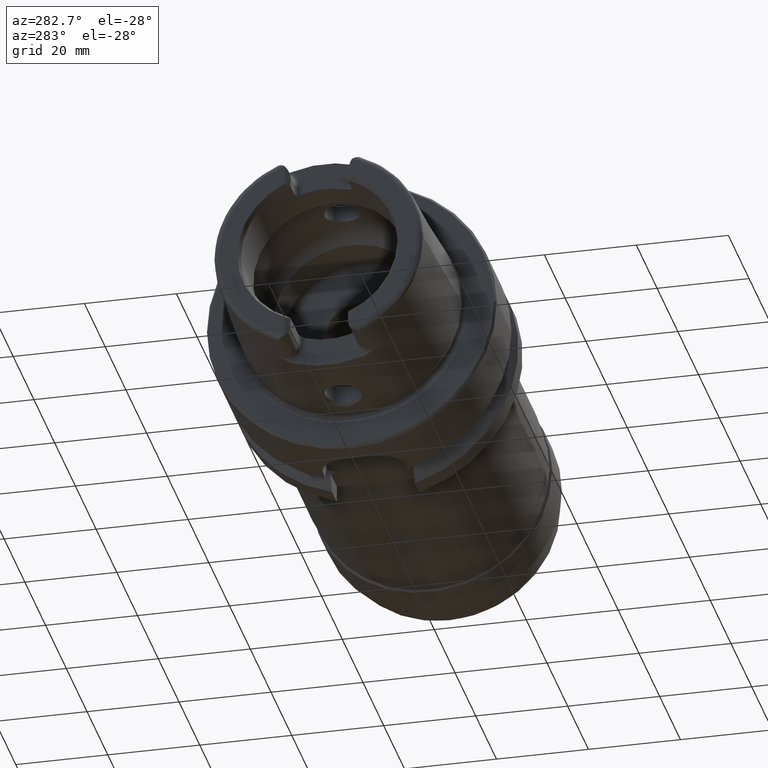
[diagram: clean part render]
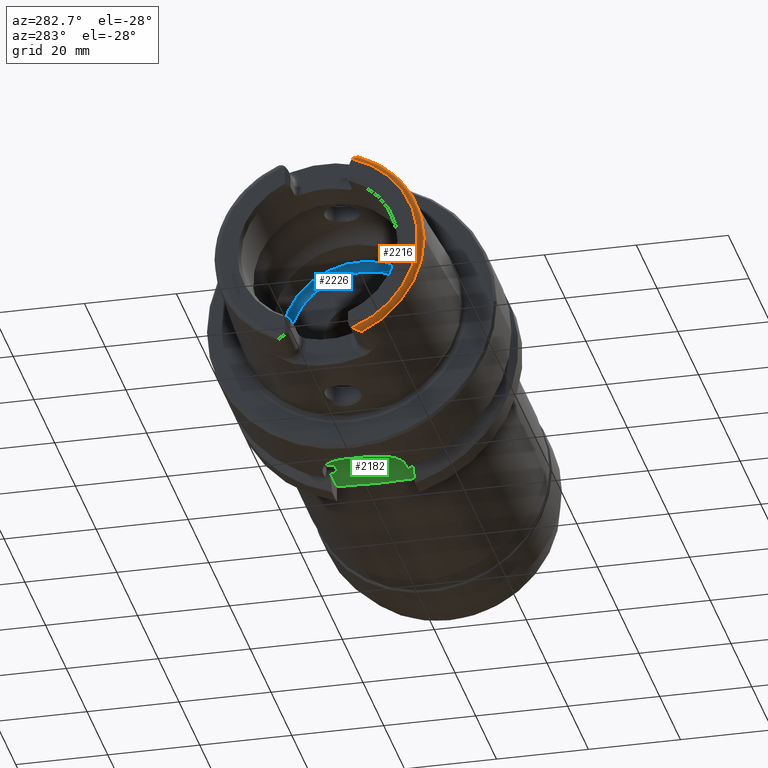
[diagram: same view with three faces highlighted in distinct colors, each labeled with its STEP entity id]
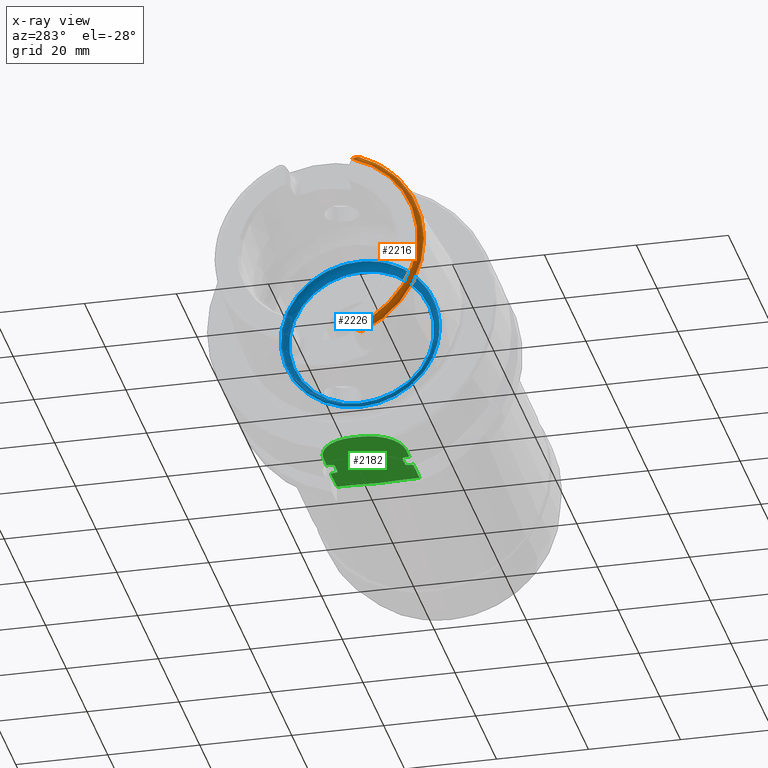
[diagram: x-ray of the same camera — body ghosted, the three highlighted faces saturated]
A machine part, auxiliary view with three faces highlighted in distinct colors.
The next image is the same camera in x-ray (body ghosted, the three faces saturated) — at least one of them is partly hidden behind the body in this view.
Their STEP definitions:

[orange] entity #2216 — the highlighted toroidal blend (fillet) surface has major radius 21.576 mm and minor (blend) radius 1.2 mm.
#44=B_SPLINE_CURVE_WITH_KNOTS('',3,(#3466,#3467,#3468,#3469,#3470,#3471,
#3472,#3473,#3474,#3475,#3476,#3477),.UNSPECIFIED.,.F.,.F.,(4,2,2,2,2,4),
(-0.440016298339346,-0.413819168091726,-0.38684223146412,-0.314176502280688,
-0.242048966230796,-0.191409762337977),.UNSPECIFIED.);
#99=B_SPLINE_CURVE_WITH_KNOTS('',3,(#4651,#4652,#4653,#4654,#4655,#4656,
#4657,#4658,#4659,#4660,#4661,#4662),.UNSPECIFIED.,.F.,.F.,(4,2,2,2,2,4),
(-0.196612183526961,-0.162100751777108,-0.0988537843219417,-0.0492481970353068,
-0.0201985054494333,0.),.UNSPECIFIED.);
#190=TOROIDAL_SURFACE('',#2486,21.5760400159857,1.2);
#294=FACE_OUTER_BOUND('',#426,.T.);
#426=EDGE_LOOP('',(#1936,#1937,#1938,#1939,#1940));
#732=CIRCLE('',#2345,21.5760400159857);
#741=CIRCLE('',#2369,22.7745368271334);
#745=CIRCLE('',#2373,22.7745368271334);
#884=VERTEX_POINT('',#3392);
#885=VERTEX_POINT('',#3394);
#901=VERTEX_POINT('',#3465);
#916=VERTEX_POINT('',#3666);
#917=VERTEX_POINT('',#3668);
#1128=EDGE_CURVE('',#885,#884,#732,.T.);
#1149=EDGE_CURVE('',#901,#885,#44,.T.);
#1169=EDGE_CURVE('',#916,#917,#741,.T.);
#1182=EDGE_CURVE('',#901,#916,#745,.T.);
#1354=EDGE_CURVE('',#884,#917,#99,.T.);
#1936=ORIENTED_EDGE('',*,*,#1149,.T.);
#1937=ORIENTED_EDGE('',*,*,#1128,.T.);
#1938=ORIENTED_EDGE('',*,*,#1354,.T.);
#1939=ORIENTED_EDGE('',*,*,#1169,.F.);
#1940=ORIENTED_EDGE('',*,*,#1182,.F.);
#2216=ADVANCED_FACE('',(#294),#190,.T.);
#2345=AXIS2_PLACEMENT_3D('',#3395,#2722,#2723);
#2369=AXIS2_PLACEMENT_3D('',#3669,#2788,#2789);
#2373=AXIS2_PLACEMENT_3D('',#3792,#2796,#2797);
#2486=AXIS2_PLACEMENT_3D('',#4650,#3087,#3088);
#2722=DIRECTION('center_axis',(1.,0.,0.));
#2723=DIRECTION('ref_axis',(0.,0.,-1.));
#2788=DIRECTION('center_axis',(1.,0.,0.));
#2789=DIRECTION('ref_axis',(0.,0.,-1.));
#2796=DIRECTION('center_axis',(1.,0.,0.));
#2797=DIRECTION('ref_axis',(0.,0.,-1.));
#3087=DIRECTION('center_axis',(1.,0.,0.));
#3088=DIRECTION('ref_axis',(0.,0.,-1.));
#3392=CARTESIAN_POINT('',(-32.,-7.39118810947246,-20.2705658801576));
#3394=CARTESIAN_POINT('',(-32.,-7.39118810947246,20.2705658801576));
#3395=CARTESIAN_POINT('Origin',(-32.,0.,0.));
#3465=CARTESIAN_POINT('',(-30.8600449304182,-9.1175788960984,20.8698175067219));
#3466=CARTESIAN_POINT('Ctrl Pts',(-30.8600449304182,-9.11757889609839,20.8698175067219));
#3467=CARTESIAN_POINT('Ctrl Pts',(-30.9283853966267,-9.1092413596916,20.8697236423942));
#3468=CARTESIAN_POINT('Ctrl Pts',(-30.9933437959442,-9.08709005778456,20.8694809526083));
#3469=CARTESIAN_POINT('Ctrl Pts',(-31.1177754091763,-9.02396510410894,20.8674193162914));
#3470=CARTESIAN_POINT('Ctrl Pts',(-31.1770034834694,-8.98246838908717,20.8654817144325));
#3471=CARTESIAN_POINT('Ctrl Pts',(-31.3775872414353,-8.81520504288704,20.8530880014962));
#3472=CARTESIAN_POINT('Ctrl Pts',(-31.521057678942,-8.63827412284131,20.8318261586711));
#3473=CARTESIAN_POINT('Ctrl Pts',(-31.7694065050575,-8.23592790359805,20.7289177452773));
#3474=CARTESIAN_POINT('Ctrl Pts',(-31.8689043999789,-8.02084936775806,20.6497346714256));
#3475=CARTESIAN_POINT('Ctrl Pts',(-31.9746332690681,-7.66799906728034,20.4648878758955));
#3476=CARTESIAN_POINT('Ctrl Pts',(-32.,-7.52524774054413,20.3739549886328));
#3477=CARTESIAN_POINT('Ctrl Pts',(-32.,-7.39118810947247,20.2705658801576));
#3666=CARTESIAN_POINT('',(-30.8600449304182,-22.7745368271334,-2.78907636274124E-15));
#3668=CARTESIAN_POINT('',(-30.8600449304182,-9.1175788960984,-20.8698175067219));
#3669=CARTESIAN_POINT('Origin',(-30.8600449304182,0.,0.));
#3792=CARTESIAN_POINT('Origin',(-30.8600449304182,0.,0.));
#4650=CARTESIAN_POINT('Origin',(-30.8,0.,0.));
#4651=CARTESIAN_POINT('Ctrl Pts',(-32.,-7.39118810947247,-20.2705658801576));
#4652=CARTESIAN_POINT('Ctrl Pts',(-32.,-7.51057646079925,-20.3626402436877));
#4653=CARTESIAN_POINT('Ctrl Pts',(-31.9798323447024,-7.63713759811651,-20.4450895592776));
#4654=CARTESIAN_POINT('Ctrl Pts',(-31.8795915966629,-8.00411514663101,-20.6460540241957));
#4655=CARTESIAN_POINT('Ctrl Pts',(-31.7662291944519,-8.24534617868917,-20.7330636375648));
#4656=CARTESIAN_POINT('Ctrl Pts',(-31.5260503396065,-8.62641311167603,-20.8272571305318));
#4657=CARTESIAN_POINT('Ctrl Pts',(-31.4080214744472,-8.77500391332017,-20.8477181028241));
#4658=CARTESIAN_POINT('Ctrl Pts',(-31.2168511506693,-8.95347341138424,-20.8640491182849));
#4659=CARTESIAN_POINT('Ctrl Pts',(-31.1371144343332,-9.01480627610083,-20.8671499279665));
#4660=CARTESIAN_POINT('Ctrl Pts',(-30.9904836833853,-9.08806135889972,-20.8694907892639));
#4661=CARTESIAN_POINT('Ctrl Pts',(-30.9268776870879,-9.10942530024495,-20.8697257132045));
#4662=CARTESIAN_POINT('Ctrl Pts',(-30.8600449304182,-9.11757889609838,-20.8698175067219));

[blue] entity #2226 — the highlighted toroidal blend (fillet) surface has major radius 15.75 mm and minor (blend) radius 1.5 mm.
#192=TOROIDAL_SURFACE('',#2505,15.75,1.5);
#304=FACE_OUTER_BOUND('',#438,.T.);
#438=EDGE_LOOP('',(#1991,#1992,#1993,#1994,#1995));
#807=CIRCLE('',#2504,15.75);
#808=CIRCLE('',#2506,1.5);
#809=CIRCLE('',#2507,17.);
#810=CIRCLE('',#2508,17.);
#1040=VERTEX_POINT('',#4688);
#1041=VERTEX_POINT('',#4691);
#1042=VERTEX_POINT('',#4693);
#1366=EDGE_CURVE('',#1040,#1040,#807,.T.);
#1367=EDGE_CURVE('',#1040,#1041,#808,.T.);
#1368=EDGE_CURVE('',#1041,#1042,#809,.T.);
#1369=EDGE_CURVE('',#1042,#1041,#810,.T.);
#1991=ORIENTED_EDGE('',*,*,#1366,.F.);
#1992=ORIENTED_EDGE('',*,*,#1367,.T.);
#1993=ORIENTED_EDGE('',*,*,#1368,.T.);
#1994=ORIENTED_EDGE('',*,*,#1369,.T.);
#1995=ORIENTED_EDGE('',*,*,#1367,.F.);
#2226=ADVANCED_FACE('',(#304),#192,.F.);
#2504=AXIS2_PLACEMENT_3D('',#4689,#3126,#3127);
#2505=AXIS2_PLACEMENT_3D('',#4690,#3128,#3129);
#2506=AXIS2_PLACEMENT_3D('',#4692,#3130,#3131);
#2507=AXIS2_PLACEMENT_3D('',#4694,#3132,#3133);
#2508=AXIS2_PLACEMENT_3D('',#4695,#3134,#3135);
#3126=DIRECTION('center_axis',(-1.,0.,0.));
#3127=DIRECTION('ref_axis',(0.,0.,1.));
#3128=DIRECTION('center_axis',(-1.,0.,0.));
#3129=DIRECTION('ref_axis',(0.,0.,1.));
#3130=DIRECTION('center_axis',(0.,1.,-1.22464679914735E-16));
#3131=DIRECTION('ref_axis',(0.,-1.22464679914735E-16,-1.));
#3132=DIRECTION('center_axis',(-1.,0.,0.));
#3133=DIRECTION('ref_axis',(0.,0.,1.));
#3134=DIRECTION('center_axis',(-1.,0.,0.));
#3135=DIRECTION('ref_axis',(0.,0.,1.));
#4688=CARTESIAN_POINT('',(10.,-1.92881870865708E-15,-15.75));
#4689=CARTESIAN_POINT('Origin',(10.,0.,0.));
#4690=CARTESIAN_POINT('Origin',(8.5,0.,0.));
#4691=CARTESIAN_POINT('',(7.67084380241115,-2.0818995585505E-15,-17.));
#4692=CARTESIAN_POINT('Origin',(8.5,-1.92881870865708E-15,-15.75));
#4693=CARTESIAN_POINT('',(7.67084380241115,-17.,2.0818995585505E-15));
#4694=CARTESIAN_POINT('Origin',(7.67084380241115,0.,0.));
#4695=CARTESIAN_POINT('Origin',(7.67084380241115,0.,0.));

[green] entity #2182 — the highlighted planar face has unit normal (0, 0, 1).
#39=B_SPLINE_CURVE_WITH_KNOTS('',3,(#3311,#3312,#3313,#3314,#3315,#3316),
 .UNSPECIFIED.,.F.,.F.,(4,2,4),(1.91210835797402,2.31152574899983,2.5086322314368),
 .UNSPECIFIED.);
#41=B_SPLINE_CURVE_WITH_KNOTS('',3,(#3332,#3333,#3334,#3335,#3336,#3337),
 .UNSPECIFIED.,.F.,.F.,(4,2,4),(1.31558448451124,1.51269096694821,1.91210835797402),
 .UNSPECIFIED.);
#81=B_SPLINE_CURVE_WITH_KNOTS('',3,(#4343,#4344,#4345,#4346,#4347,#4348,
#4349,#4350,#4351,#4352),.UNSPECIFIED.,.F.,.F.,(4,2,2,2,4),(0.328785692776271,
0.334026201575553,0.340879824321645,0.368343350403884,0.499212073098123),
 .UNSPECIFIED.);
#82=B_SPLINE_CURVE_WITH_KNOTS('',3,(#4355,#4356,#4357,#4358,#4359,#4360,
#4361,#4362,#4363,#4364),.UNSPECIFIED.,.F.,.F.,(4,2,2,2,4),(0.15835931245442,
0.289228035148658,0.316691561230896,0.323545183976989,0.32878569277627),
 .UNSPECIFIED.);
#83=B_SPLINE_CURVE_WITH_KNOTS('',3,(#4367,#4368,#4369,#4370,#4371,#4372,
#4373,#4374,#4375,#4376),.UNSPECIFIED.,.F.,.F.,(4,2,2,2,4),(0.32878569277627,
0.334026201575551,0.340879824321645,0.368343350403882,0.49921207309812),
 .UNSPECIFIED.);
#84=B_SPLINE_CURVE_WITH_KNOTS('',3,(#4379,#4380,#4381,#4382,#4383,#4384,
#4385,#4386,#4387,#4388),.UNSPECIFIED.,.F.,.F.,(4,2,2,2,4),(0.15835931245442,
0.289228035148658,0.316691561230897,0.323545183976989,0.328785692776271),
 .UNSPECIFIED.);
#134=PLANE('',#2425);
#260=FACE_OUTER_BOUND('',#391,.T.);
#391=EDGE_LOOP('',(#1744,#1745,#1746,#1747,#1748,#1749,#1750,#1751,#1752,
#1753,#1754,#1755,#1756,#1757,#1758,#1759,#1760));
#472=LINE('',#3353,#584);
#521=LINE('',#4255,#633);
#522=LINE('',#4264,#634);
#527=LINE('',#4293,#639);
#531=LINE('',#4332,#643);
#533=LINE('',#4336,#645);
#534=LINE('',#4354,#646);
#535=LINE('',#4365,#647);
#536=LINE('',#4378,#648);
#584=VECTOR('',#2673,10.);
#633=VECTOR('',#2906,10.);
#634=VECTOR('',#2909,10.);
#639=VECTOR('',#2922,10.);
#643=VECTOR('',#2932,10.);
#645=VECTOR('',#2936,10.);
#646=VECTOR('',#2939,10.);
#647=VECTOR('',#2940,10.);
#648=VECTOR('',#2941,10.);
#769=CIRCLE('',#2418,8.);
#771=CIRCLE('',#2422,8.);
#860=VERTEX_POINT('',#3308);
#861=VERTEX_POINT('',#3310);
#864=VERTEX_POINT('',#3330);
#871=VERTEX_POINT('',#3351);
#974=VERTEX_POINT('',#4229);
#979=VERTEX_POINT('',#4253);
#980=VERTEX_POINT('',#4257);
#982=VERTEX_POINT('',#4263);
#987=VERTEX_POINT('',#4286);
#989=VERTEX_POINT('',#4292);
#991=VERTEX_POINT('',#4307);
#994=VERTEX_POINT('',#4327);
#995=VERTEX_POINT('',#4335);
#996=VERTEX_POINT('',#4342);
#997=VERTEX_POINT('',#4353);
#998=VERTEX_POINT('',#4366);
#999=VERTEX_POINT('',#4377);
#1097=EDGE_CURVE('',#861,#860,#39,.F.);
#1101=EDGE_CURVE('',#860,#864,#41,.F.);
#1109=EDGE_CURVE('',#871,#864,#472,.T.);
#1254=EDGE_CURVE('',#979,#974,#521,.T.);
#1256=EDGE_CURVE('',#980,#982,#522,.T.);
#1262=EDGE_CURVE('',#982,#987,#769,.T.);
#1265=EDGE_CURVE('',#987,#989,#527,.T.);
#1268=EDGE_CURVE('',#989,#991,#771,.T.);
#1274=EDGE_CURVE('',#994,#871,#531,.T.);
#1276=EDGE_CURVE('',#991,#995,#533,.T.);
#1278=EDGE_CURVE('',#996,#980,#81,.T.);
#1279=EDGE_CURVE('',#997,#996,#534,.T.);
#1280=EDGE_CURVE('',#974,#997,#82,.T.);
#1281=EDGE_CURVE('',#861,#979,#535,.T.);
#1282=EDGE_CURVE('',#998,#994,#83,.T.);
#1283=EDGE_CURVE('',#999,#998,#536,.T.);
#1284=EDGE_CURVE('',#995,#999,#84,.T.);
#1744=ORIENTED_EDGE('',*,*,#1278,.F.);
#1745=ORIENTED_EDGE('',*,*,#1279,.F.);
#1746=ORIENTED_EDGE('',*,*,#1280,.F.);
#1747=ORIENTED_EDGE('',*,*,#1254,.F.);
#1748=ORIENTED_EDGE('',*,*,#1281,.F.);
#1749=ORIENTED_EDGE('',*,*,#1097,.T.);
#1750=ORIENTED_EDGE('',*,*,#1101,.T.);
#1751=ORIENTED_EDGE('',*,*,#1109,.F.);
#1752=ORIENTED_EDGE('',*,*,#1274,.F.);
#1753=ORIENTED_EDGE('',*,*,#1282,.F.);
#1754=ORIENTED_EDGE('',*,*,#1283,.F.);
#1755=ORIENTED_EDGE('',*,*,#1284,.F.);
#1756=ORIENTED_EDGE('',*,*,#1276,.F.);
#1757=ORIENTED_EDGE('',*,*,#1268,.F.);
#1758=ORIENTED_EDGE('',*,*,#1265,.F.);
#1759=ORIENTED_EDGE('',*,*,#1262,.F.);
#1760=ORIENTED_EDGE('',*,*,#1256,.F.);
#2182=ADVANCED_FACE('',(#260),#134,.F.);
#2418=AXIS2_PLACEMENT_3D('',#4287,#2915,#2916);
#2422=AXIS2_PLACEMENT_3D('',#4308,#2926,#2927);
#2425=AXIS2_PLACEMENT_3D('',#4341,#2937,#2938);
#2673=DIRECTION('',(0.,1.,0.));
#2906=DIRECTION('',(-1.,2.56205313375036E-16,0.));
#2909=DIRECTION('',(-1.,2.56205313375036E-16,0.));
#2915=DIRECTION('center_axis',(0.,0.,1.));
#2916=DIRECTION('ref_axis',(0.,1.,0.));
#2922=DIRECTION('',(0.,-1.,0.));
#2926=DIRECTION('center_axis',(0.,0.,1.));
#2927=DIRECTION('ref_axis',(-1.,-2.42861286636753E-16,0.));
#2932=DIRECTION('',(1.,-2.56205313375036E-16,0.));
#2936=DIRECTION('',(1.,-2.56205313375036E-16,0.));
#2937=DIRECTION('center_axis',(0.,0.,1.));
#2938=DIRECTION('ref_axis',(1.,0.,0.));
#2939=DIRECTION('',(-1.,0.,0.));
#2940=DIRECTION('',(0.,1.,0.));
#2941=DIRECTION('',(1.,0.,0.));
#3308=CARTESIAN_POINT('',(26.3385621722338,-1.76143488694839E-15,-26.5));
#3310=CARTESIAN_POINT('',(26.,6.34921254960012,-26.5));
#3311=CARTESIAN_POINT('Ctrl Pts',(26.3385621722338,-2.77555756156289E-16,
-26.5));
#3312=CARTESIAN_POINT('Ctrl Pts',(26.3385621722338,1.33139130341937,-26.5));
#3313=CARTESIAN_POINT('Ctrl Pts',(26.1834820080938,2.9215165119335,-26.5));
#3314=CARTESIAN_POINT('Ctrl Pts',(26.0417206591195,4.90486963902063,-26.5));
#3315=CARTESIAN_POINT('Ctrl Pts',(26.,5.69219094147689,-26.5));
#3316=CARTESIAN_POINT('Ctrl Pts',(26.,6.34921254960012,-26.5));
#3330=CARTESIAN_POINT('',(26.,-6.34921254960012,-26.5));
#3332=CARTESIAN_POINT('Ctrl Pts',(26.,-6.34921254960012,-26.5));
#3333=CARTESIAN_POINT('Ctrl Pts',(26.,-5.69219094147689,-26.5));
#3334=CARTESIAN_POINT('Ctrl Pts',(26.0417206591195,-4.90486963902063,-26.5));
#3335=CARTESIAN_POINT('Ctrl Pts',(26.1834820080938,-2.9215165119335,-26.5));
#3336=CARTESIAN_POINT('Ctrl Pts',(26.3385621722338,-1.33139130341937,-26.5));
#3337=CARTESIAN_POINT('Ctrl Pts',(26.3385621722338,-2.77555756156289E-16,
-26.5));
#3351=CARTESIAN_POINT('',(26.,-9.,-26.5));
#3353=CARTESIAN_POINT('',(26.,1.94289029309402E-15,-26.5));
#4229=CARTESIAN_POINT('',(19.8748205133158,9.,-26.5));
#4253=CARTESIAN_POINT('',(26.,9.,-26.5));
#4255=CARTESIAN_POINT('',(26.,9.,-26.5));
#4257=CARTESIAN_POINT('',(16.1251794866842,9.,-26.5));
#4263=CARTESIAN_POINT('',(13.,9.00000000000001,-26.5));
#4264=CARTESIAN_POINT('',(26.,9.,-26.5));
#4286=CARTESIAN_POINT('',(5.,1.,-26.5));
#4287=CARTESIAN_POINT('Origin',(13.,1.,-26.5));
#4292=CARTESIAN_POINT('',(5.,-0.999999999999999,-26.5));
#4293=CARTESIAN_POINT('',(5.,1.,-26.5));
#4307=CARTESIAN_POINT('',(13.,-9.,-26.5));
#4308=CARTESIAN_POINT('Origin',(13.,-0.999999999999997,-26.5));
#4327=CARTESIAN_POINT('',(19.8748205133158,-9.,-26.5));
#4332=CARTESIAN_POINT('',(13.,-9.,-26.5));
#4335=CARTESIAN_POINT('',(16.1251794866842,-9.,-26.5));
#4336=CARTESIAN_POINT('',(13.,-9.,-26.5));
#4341=CARTESIAN_POINT('Origin',(15.5,3.88578058618805E-15,-26.5));
#4342=CARTESIAN_POINT('',(16.625,7.34846922834952,-26.5));
#4343=CARTESIAN_POINT('Ctrl Pts',(16.625,7.34846922834952,-26.5));
#4344=CARTESIAN_POINT('Ctrl Pts',(16.6075316373357,7.34846922834952,-26.5));
#4345=CARTESIAN_POINT('Ctrl Pts',(16.587038394856,7.35287762173868,-26.5));
#4346=CARTESIAN_POINT('Ctrl Pts',(16.5496994821687,7.36807649661538,-26.5));
#4347=CARTESIAN_POINT('Ctrl Pts',(16.5270295504762,7.38349170057081,-26.5));
#4348=CARTESIAN_POINT('Ctrl Pts',(16.4411490019356,7.4590543697872,-26.5));
#4349=CARTESIAN_POINT('Ctrl Pts',(16.3906456489289,7.5566112023157,-26.5));
#4350=CARTESIAN_POINT('Ctrl Pts',(16.1819334034884,8.04136347440828,-26.5));
#4351=CARTESIAN_POINT('Ctrl Pts',(16.12898241235,8.55877260788573,-26.5));
#4352=CARTESIAN_POINT('Ctrl Pts',(16.1251794866842,9.,-26.5));
#4353=CARTESIAN_POINT('',(19.375,7.34846922834952,-26.5));
#4354=CARTESIAN_POINT('',(18.,7.34846922834952,-26.5));
#4355=CARTESIAN_POINT('Ctrl Pts',(19.8748205133158,9.,-26.5));
#4356=CARTESIAN_POINT('Ctrl Pts',(19.87101758765,8.55877260788574,-26.5));
#4357=CARTESIAN_POINT('Ctrl Pts',(19.8180665965116,8.04136347440828,-26.5));
#4358=CARTESIAN_POINT('Ctrl Pts',(19.6093543510711,7.5566112023157,-26.5));
#4359=CARTESIAN_POINT('Ctrl Pts',(19.5588509980644,7.45905436978721,-26.5));
#4360=CARTESIAN_POINT('Ctrl Pts',(19.4729704495238,7.38349170057082,-26.5));
#4361=CARTESIAN_POINT('Ctrl Pts',(19.4503005178313,7.36807649661538,-26.5));
#4362=CARTESIAN_POINT('Ctrl Pts',(19.412961605144,7.35287762173868,-26.5));
#4363=CARTESIAN_POINT('Ctrl Pts',(19.3924683626643,7.34846922834952,-26.5));
#4364=CARTESIAN_POINT('Ctrl Pts',(19.375,7.34846922834952,-26.5));
#4365=CARTESIAN_POINT('',(26.,1.94289029309402E-15,-26.5));
#4366=CARTESIAN_POINT('',(19.375,-7.34846922834952,-26.5));
#4367=CARTESIAN_POINT('Ctrl Pts',(19.375,-7.34846922834952,-26.5));
#4368=CARTESIAN_POINT('Ctrl Pts',(19.3924683626643,-7.34846922834952,-26.5));
#4369=CARTESIAN_POINT('Ctrl Pts',(19.412961605144,-7.35287762173868,-26.5));
#4370=CARTESIAN_POINT('Ctrl Pts',(19.4503005178313,-7.36807649661538,-26.5));
#4371=CARTESIAN_POINT('Ctrl Pts',(19.4729704495238,-7.38349170057082,-26.5));
#4372=CARTESIAN_POINT('Ctrl Pts',(19.5588509980644,-7.45905436978721,-26.5));
#4373=CARTESIAN_POINT('Ctrl Pts',(19.6093543510711,-7.5566112023157,-26.5));
#4374=CARTESIAN_POINT('Ctrl Pts',(19.8180665965116,-8.04136347440828,-26.5));
#4375=CARTESIAN_POINT('Ctrl Pts',(19.87101758765,-8.55877260788573,-26.5));
#4376=CARTESIAN_POINT('Ctrl Pts',(19.8748205133158,-9.,-26.5));
#4377=CARTESIAN_POINT('',(16.625,-7.34846922834952,-26.5));
#4378=CARTESIAN_POINT('',(18.,-7.34846922834952,-26.5));
#4379=CARTESIAN_POINT('Ctrl Pts',(16.1251794866842,-9.,-26.5));
#4380=CARTESIAN_POINT('Ctrl Pts',(16.12898241235,-8.55877260788573,-26.5));
#4381=CARTESIAN_POINT('Ctrl Pts',(16.1819334034884,-8.04136347440828,-26.5));
#4382=CARTESIAN_POINT('Ctrl Pts',(16.3906456489289,-7.5566112023157,-26.5));
#4383=CARTESIAN_POINT('Ctrl Pts',(16.4411490019356,-7.4590543697872,-26.5));
#4384=CARTESIAN_POINT('Ctrl Pts',(16.5270295504762,-7.38349170057081,-26.5));
#4385=CARTESIAN_POINT('Ctrl Pts',(16.5496994821687,-7.36807649661538,-26.5));
#4386=CARTESIAN_POINT('Ctrl Pts',(16.587038394856,-7.35287762173868,-26.5));
#4387=CARTESIAN_POINT('Ctrl Pts',(16.6075316373357,-7.34846922834952,-26.5));
#4388=CARTESIAN_POINT('Ctrl Pts',(16.625,-7.34846922834952,-26.5));